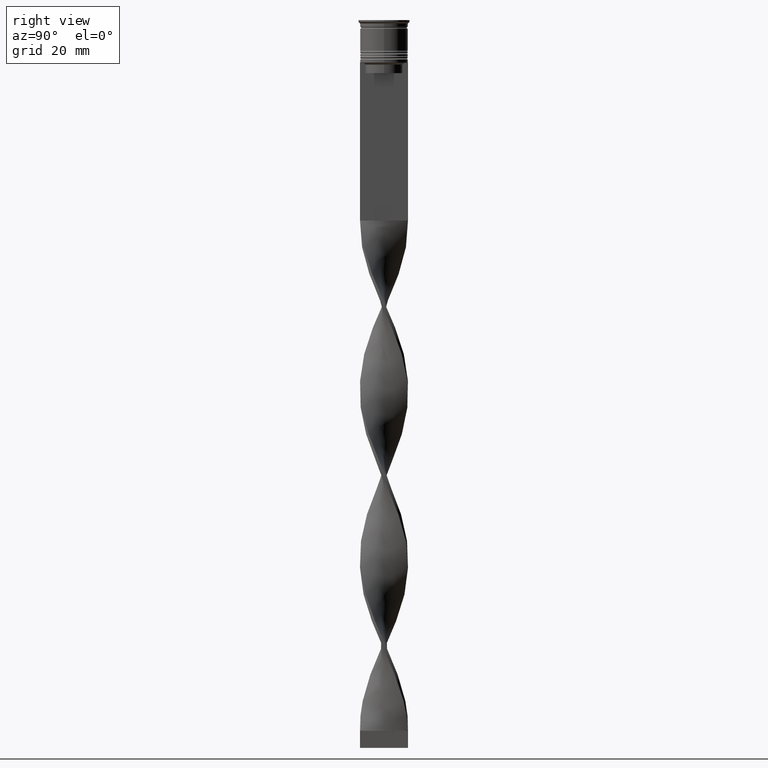
[diagram: clean part render]
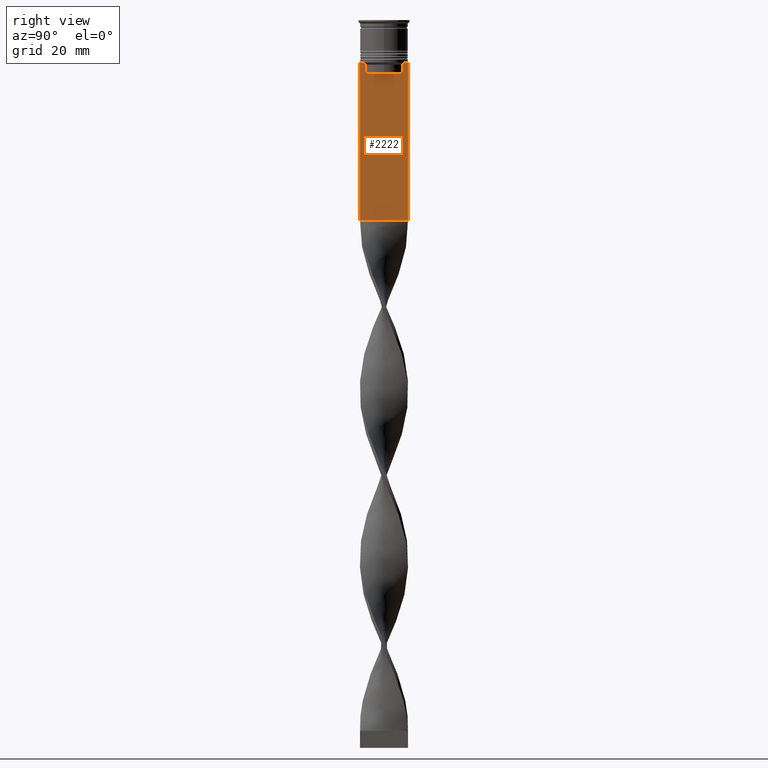
[diagram: same view with one face highlighted and labeled with its STEP entity id]
A machine part, right view. The second image highlights one B-rep face of the part: STEP entity #2222.
In plain terms, the highlighted planar face has unit normal (-1, 0, 0).
Its self-contained STEP definition (entity closure, byte-faithful):
#74 = CARTESIAN_POINT ( 'NONE',  ( 0.5000000000000000000, -5.376802023508029826, 0.000000000000000000 ) ) ;
#83 = CARTESIAN_POINT ( 'NONE',  ( 0.5000000000000000000, -5.376802023508029826, -15.50000000000000000 ) ) ;
#129 = VECTOR ( 'NONE', #438, 1000.000000000000000 ) ;
#175 = LINE ( 'NONE', #2914, #1148 ) ;
#199 = VECTOR ( 'NONE', #2445, 1000.000000000000000 ) ;
#262 = DIRECTION ( 'NONE',  ( 0.000000000000000000, 0.000000000000000000, -1.000000000000000000 ) ) ;
#286 = EDGE_CURVE ( 'NONE', #1540, #2380, #3756, .T. ) ;
#326 = CARTESIAN_POINT ( 'NONE',  ( 0.5000000000000000000, -5.711478856069293286, -12.66669469529570335 ) ) ;
#330 = VECTOR ( 'NONE', #2695, 1000.000000000000000 ) ;
#400 = CARTESIAN_POINT ( 'NONE',  ( 0.5000000000000000000, 5.376802023508029826, 0.000000000000000000 ) ) ;
#429 = VECTOR ( 'NONE', #2936, 1000.000000000000000 ) ;
#438 = DIRECTION ( 'NONE',  ( 0.000000000000000000, 0.000000000000000000, -1.000000000000000000 ) ) ;
#447 = CARTESIAN_POINT ( 'NONE',  ( 0.5000000000000000000, 5.878775382679629402, -12.50000000000000000 ) ) ;
#498 = ORIENTED_EDGE ( 'NONE', *, *, #557, .T. ) ;
#532 = CARTESIAN_POINT ( 'NONE',  ( 0.5000000000000000000, 5.544156989057553275, -12.83336397825725861 ) ) ;
#557 = EDGE_CURVE ( 'NONE', #2058, #873, #3721, .T. ) ;
#564 = VERTEX_POINT ( 'NONE', #3154 ) ;
#614 = VERTEX_POINT ( 'NONE', #731 ) ;
#629 = EDGE_CURVE ( 'NONE', #2380, #3747, #2764, .T. ) ;
#731 = CARTESIAN_POINT ( 'NONE',  ( 0.5000000000000000000, 7.000000000000002665, -58.50000000000000000 ) ) ;
#749 = DIRECTION ( 'NONE',  ( 0.000000000000000000, -1.000000000000000000, 0.000000000000000000 ) ) ;
#767 = CARTESIAN_POINT ( 'NONE',  ( 0.5000000000000000000, -5.376802023508029826, -13.00000000000000178 ) ) ;
#787 = CARTESIAN_POINT ( 'NONE',  ( 0.5000000000000000000, 5.400000000000003908, -15.50000000000000000 ) ) ;
#829 = ORIENTED_EDGE ( 'NONE', *, *, #2950, .F. ) ;
#873 = VERTEX_POINT ( 'NONE', #447 ) ;
#885 = ORIENTED_EDGE ( 'NONE', *, *, #1182, .T. ) ;
#1075 = VERTEX_POINT ( 'NONE', #2288 ) ;
#1132 = B_SPLINE_CURVE_WITH_KNOTS ( 'NONE', 3,
 ( #2061, #3002, #326, #3281 ),
 .UNSPECIFIED., .F., .F.,
 ( 4, 4 ),
 ( 0.02539176325380714666, 0.02610162431828674801 ),
 .UNSPECIFIED. ) ;
#1148 = VECTOR ( 'NONE', #262, 1000.000000000000000 ) ;
#1182 = EDGE_CURVE ( 'NONE', #1075, #2550, #2035, .T. ) ;
#1231 = ORIENTED_EDGE ( 'NONE', *, *, #3602, .T. ) ;
#1307 = CARTESIAN_POINT ( 'NONE',  ( 0.5000000000000000000, -6.999999999999997335, -12.50000000000000000 ) ) ;
#1322 = CARTESIAN_POINT ( 'NONE',  ( 0.5000000000000000000, -5.878775382679629402, -12.50000000000000000 ) ) ;
#1336 = EDGE_LOOP ( 'NONE', ( #498, #1231, #1752, #1858, #2463, #2877, #1404, #2787, #885, #3229, #829, #2485 ) ) ;
#1398 = CARTESIAN_POINT ( 'NONE',  ( 0.5000000000000000000, 6.881860213634102053, -12.50000000000000000 ) ) ;
#1404 = ORIENTED_EDGE ( 'NONE', *, *, #2722, .T. ) ;
#1444 = CARTESIAN_POINT ( 'NONE',  ( 0.5000000000000000000, 5.376802023508029826, -13.00000000000000178 ) ) ;
#1452 = LINE ( 'NONE', #1307, #199 ) ;
#1510 = LINE ( 'NONE', #3292, #330 ) ;
#1540 = VERTEX_POINT ( 'NONE', #2548 ) ;
#1576 = VECTOR ( 'NONE', #3767, 1000.000000000000000 ) ;
#1752 = ORIENTED_EDGE ( 'NONE', *, *, #1826, .T. ) ;
#1775 = B_SPLINE_CURVE_WITH_KNOTS ( 'NONE', 3,
 ( #2048, #3302, #532, #1444 ),
 .UNSPECIFIED., .F., .F.,
 ( 4, 4 ),
 ( 0.01003009312103698807, 0.01073859663834952557 ),
 .UNSPECIFIED. ) ;
#1822 = DIRECTION ( 'NONE',  ( 0.000000000000000000, 1.000000000000000000, 0.000000000000000000 ) ) ;
#1826 = EDGE_CURVE ( 'NONE', #1842, #1540, #3661, .T. ) ;
#1827 = FACE_OUTER_BOUND ( 'NONE', #1336, .T. ) ;
#1842 = VERTEX_POINT ( 'NONE', #2177 ) ;
#1858 = ORIENTED_EDGE ( 'NONE', *, *, #286, .T. ) ;
#1994 = LINE ( 'NONE', #3184, #2456 ) ;
#2035 = LINE ( 'NONE', #3230, #3702 ) ;
#2048 = CARTESIAN_POINT ( 'NONE',  ( 0.5000000000000000000, 5.878775382679629402, -12.50000000000000000 ) ) ;
#2058 = VERTEX_POINT ( 'NONE', #1398 ) ;
#2061 = CARTESIAN_POINT ( 'NONE',  ( 0.5000000000000000000, -5.376802023508029826, -13.00000000000000178 ) ) ;
#2177 = CARTESIAN_POINT ( 'NONE',  ( 0.5000000000000000000, 5.376802023508029826, -13.00000000000000178 ) ) ;
#2222 = ADVANCED_FACE ( 'NONE', ( #1827 ), #3550, .F. ) ;
#2226 = EDGE_CURVE ( 'NONE', #3747, #2474, #1132, .T. ) ;
#2272 = VERTEX_POINT ( 'NONE', #2705 ) ;
#2288 = CARTESIAN_POINT ( 'NONE',  ( 0.5000000000000000000, -6.999999999999997335, -12.50000000000000000 ) ) ;
#2380 = VERTEX_POINT ( 'NONE', #83 ) ;
#2392 = VECTOR ( 'NONE', #749, 1000.000000000000000 ) ;
#2445 = DIRECTION ( 'NONE',  ( 0.000000000000000000, -1.000000000000000000, 0.000000000000000000 ) ) ;
#2456 = VECTOR ( 'NONE', #3452, 1000.000000000000000 ) ;
#2463 = ORIENTED_EDGE ( 'NONE', *, *, #629, .T. ) ;
#2474 = VERTEX_POINT ( 'NONE', #1322 ) ;
#2485 = ORIENTED_EDGE ( 'NONE', *, *, #3028, .T. ) ;
#2548 = CARTESIAN_POINT ( 'NONE',  ( 0.5000000000000000000, 5.376802023508029826, -15.50000000000000000 ) ) ;
#2550 = VERTEX_POINT ( 'NONE', #3822 ) ;
#2617 = LINE ( 'NONE', #3514, #2831 ) ;
#2669 = CARTESIAN_POINT ( 'NONE',  ( 0.5000000000000000000, -6.999999999999997335, 1.535668847618198329 ) ) ;
#2695 = DIRECTION ( 'NONE',  ( 0.000000000000000000, -1.000000000000000000, 0.000000000000000000 ) ) ;
#2705 = CARTESIAN_POINT ( 'NONE',  ( 0.5000000000000000000, 7.000000000000002665, -12.50000000000000000 ) ) ;
#2722 = EDGE_CURVE ( 'NONE', #2474, #564, #1452, .T. ) ;
#2764 = LINE ( 'NONE', #74, #1576 ) ;
#2787 = ORIENTED_EDGE ( 'NONE', *, *, #3298, .T. ) ;
#2831 = VECTOR ( 'NONE', #1822, 1000.000000000000000 ) ;
#2877 = ORIENTED_EDGE ( 'NONE', *, *, #2226, .T. ) ;
#2914 = CARTESIAN_POINT ( 'NONE',  ( 0.5000000000000000000, 7.000000000000002665, 1.535668847618198329 ) ) ;
#2936 = DIRECTION ( 'NONE',  ( 0.000000000000000000, -1.000000000000000000, 0.000000000000000000 ) ) ;
#2950 = EDGE_CURVE ( 'NONE', #2272, #614, #175, .T. ) ;
#2989 = DIRECTION ( 'NONE',  ( 0.000000000000000000, 0.000000000000000000, 1.000000000000000000 ) ) ;
#3002 = CARTESIAN_POINT ( 'NONE',  ( 0.5000000000000000000, -5.544156999454441959, -12.83336396790503642 ) ) ;
#3028 = EDGE_CURVE ( 'NONE', #2272, #2058, #1994, .T. ) ;
#3041 = DIRECTION ( 'NONE',  ( -1.000000000000000000, 0.000000000000000000, 0.000000000000000000 ) ) ;
#3091 = EDGE_CURVE ( 'NONE', #2550, #614, #2617, .T. ) ;
#3154 = CARTESIAN_POINT ( 'NONE',  ( 0.5000000000000000000, -6.881860213634102053, -12.50000000000000000 ) ) ;
#3184 = CARTESIAN_POINT ( 'NONE',  ( 0.5000000000000000000, -6.999999999999997335, -12.50000000000000000 ) ) ;
#3229 = ORIENTED_EDGE ( 'NONE', *, *, #3091, .T. ) ;
#3230 = CARTESIAN_POINT ( 'NONE',  ( 0.5000000000000000000, -6.999999999999997335, 1.535668847618198329 ) ) ;
#3281 = CARTESIAN_POINT ( 'NONE',  ( 0.5000000000000000000, -5.878775382679629402, -12.50000000000000000 ) ) ;
#3292 = CARTESIAN_POINT ( 'NONE',  ( 0.5000000000000000000, -6.999999999999997335, -12.50000000000000000 ) ) ;
#3298 = EDGE_CURVE ( 'NONE', #564, #1075, #1510, .T. ) ;
#3302 = CARTESIAN_POINT ( 'NONE',  ( 0.5000000000000000000, 5.711478846560141598, -12.66669470477064685 ) ) ;
#3435 = CARTESIAN_POINT ( 'NONE',  ( 0.5000000000000000000, -6.999999999999997335, -12.50000000000000000 ) ) ;
#3452 = DIRECTION ( 'NONE',  ( 0.000000000000000000, -1.000000000000000000, 0.000000000000000000 ) ) ;
#3514 = CARTESIAN_POINT ( 'NONE',  ( 0.5000000000000000000, -6.999999999999997335, -58.50000000000000000 ) ) ;
#3525 = AXIS2_PLACEMENT_3D ( 'NONE', #2669, #3041, #2989 ) ;
#3540 = DIRECTION ( 'NONE',  ( 0.000000000000000000, 0.000000000000000000, -1.000000000000000000 ) ) ;
#3550 = PLANE ( 'NONE',  #3525 ) ;
#3602 = EDGE_CURVE ( 'NONE', #873, #1842, #1775, .T. ) ;
#3661 = LINE ( 'NONE', #400, #129 ) ;
#3702 = VECTOR ( 'NONE', #3540, 1000.000000000000000 ) ;
#3721 = LINE ( 'NONE', #3435, #2392 ) ;
#3747 = VERTEX_POINT ( 'NONE', #767 ) ;
#3756 = LINE ( 'NONE', #787, #429 ) ;
#3767 = DIRECTION ( 'NONE',  ( -0.000000000000000000, -0.000000000000000000, 1.000000000000000000 ) ) ;
#3822 = CARTESIAN_POINT ( 'NONE',  ( 0.5000000000000000000, -6.999999999999997335, -58.50000000000000000 ) ) ;